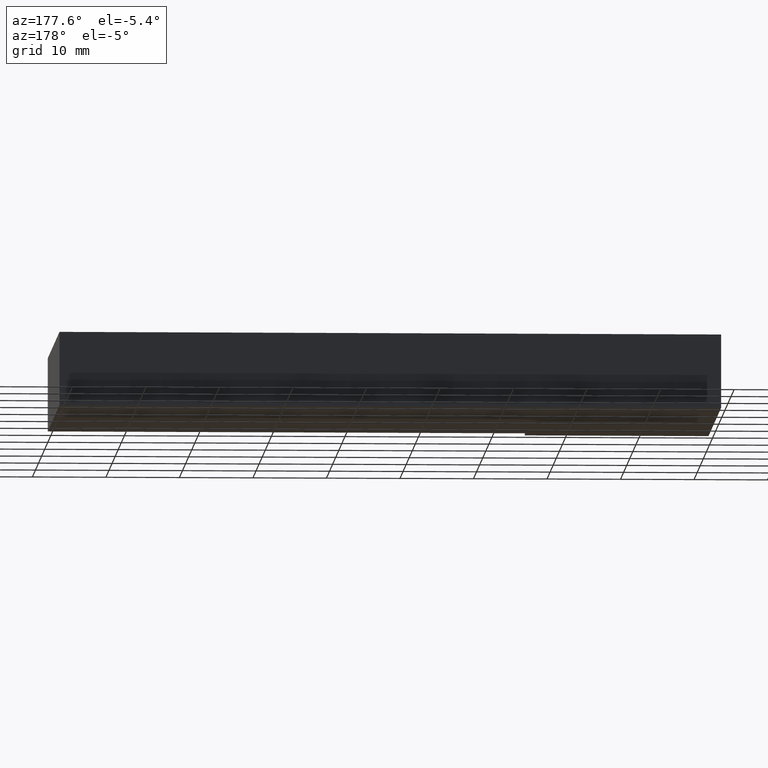
[diagram: clean part render]
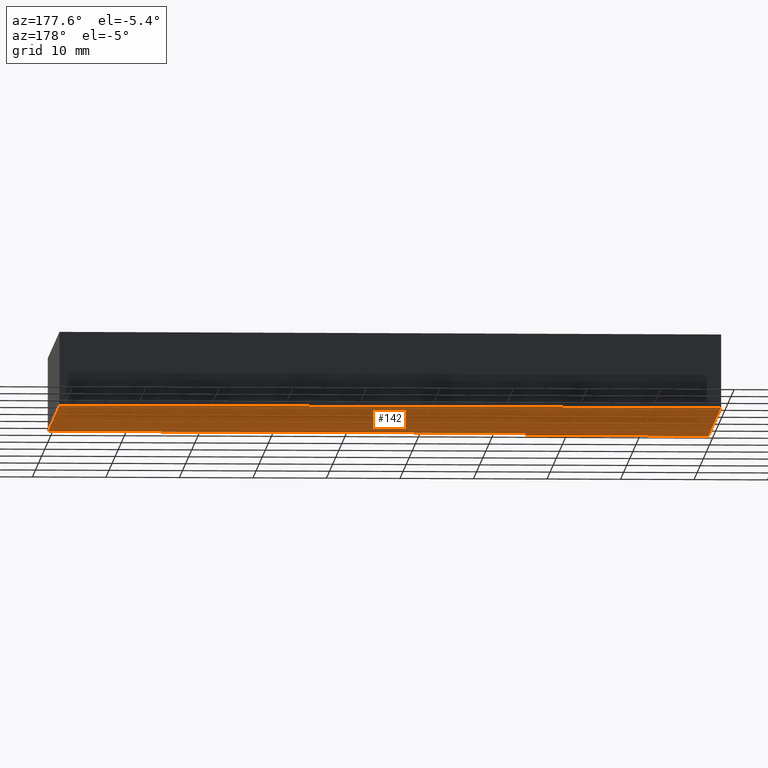
[diagram: same view with one face highlighted and labeled with its STEP entity id]
A machine part, auxiliary view. The second image highlights one B-rep face of the part: STEP entity #142.
In plain terms, the highlighted planar face has unit normal (0, 0, 1).
Its self-contained STEP definition (entity closure, byte-faithful):
#16=FACE_OUTER_BOUND('',#24,.T.);
#24=EDGE_LOOP('',(#98,#99,#100,#101,#102,#103));
#32=LINE('',#221,#50);
#33=LINE('',#223,#51);
#34=LINE('',#225,#52);
#35=LINE('',#227,#53);
#36=LINE('',#229,#54);
#37=LINE('',#230,#55);
#50=VECTOR('',#185,10.);
#51=VECTOR('',#186,10.);
#52=VECTOR('',#187,10.);
#53=VECTOR('',#188,10.);
#54=VECTOR('',#189,10.);
#55=VECTOR('',#190,10.);
#68=VERTEX_POINT('',#219);
#69=VERTEX_POINT('',#220);
#70=VERTEX_POINT('',#222);
#71=VERTEX_POINT('',#224);
#72=VERTEX_POINT('',#226);
#73=VERTEX_POINT('',#228);
#80=EDGE_CURVE('',#68,#69,#32,.T.);
#81=EDGE_CURVE('',#70,#68,#33,.T.);
#82=EDGE_CURVE('',#71,#70,#34,.T.);
#83=EDGE_CURVE('',#72,#71,#35,.T.);
#84=EDGE_CURVE('',#73,#72,#36,.T.);
#85=EDGE_CURVE('',#69,#73,#37,.T.);
#98=ORIENTED_EDGE('',*,*,#80,.F.);
#99=ORIENTED_EDGE('',*,*,#81,.F.);
#100=ORIENTED_EDGE('',*,*,#82,.F.);
#101=ORIENTED_EDGE('',*,*,#83,.F.);
#102=ORIENTED_EDGE('',*,*,#84,.F.);
#103=ORIENTED_EDGE('',*,*,#85,.F.);
#134=PLANE('',#173);
#142=ADVANCED_FACE('',(#16),#134,.F.);
#173=AXIS2_PLACEMENT_3D('',#218,#183,#184);
#183=DIRECTION('center_axis',(0.,0.,1.));
#184=DIRECTION('ref_axis',(1.,0.,0.));
#185=DIRECTION('',(-3.06161699786838E-16,1.,0.));
#186=DIRECTION('',(1.,1.23832568131267E-16,0.));
#187=DIRECTION('',(-1.1842378929335E-14,1.,0.));
#188=DIRECTION('',(1.,3.5527136788005E-16,0.));
#189=DIRECTION('',(8.66515531414756E-16,-1.,0.));
#190=DIRECTION('',(-1.,-2.96059473233375E-16,0.));
#218=CARTESIAN_POINT('Origin',(-45.7442748091603,18.2442748091603,-5.));
#219=CARTESIAN_POINT('',(3.00678215216002E-15,2.22044604925031E-15,-5.));
#220=CARTESIAN_POINT('',(-8.62736243973984E-15,38.,-5.));
#221=CARTESIAN_POINT('',(-8.62736243973984E-15,38.,-5.));
#222=CARTESIAN_POINT('',(-65.,-5.82867087928207E-15,-5.));
#223=CARTESIAN_POINT('',(3.00678215216002E-15,2.22044604925031E-15,-5.));
#224=CARTESIAN_POINT('',(-65.,-3.00000000000002,-5.));
#225=CARTESIAN_POINT('',(-65.,-5.82867087928207E-15,-5.));
#226=CARTESIAN_POINT('',(-90.,-3.00000000000002,-5.));
#227=CARTESIAN_POINT('',(-65.,-3.00000000000002,-5.));
#228=CARTESIAN_POINT('',(-90.,38.,-5.));
#229=CARTESIAN_POINT('',(-90.,-3.00000000000002,-5.));
#230=CARTESIAN_POINT('',(-90.,38.,-5.));